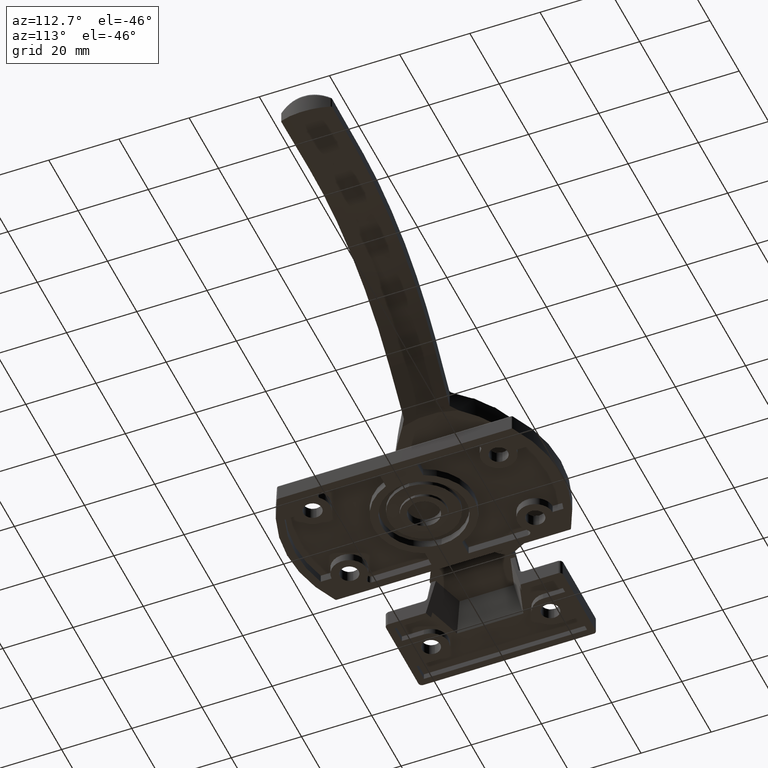
[diagram: clean part render]
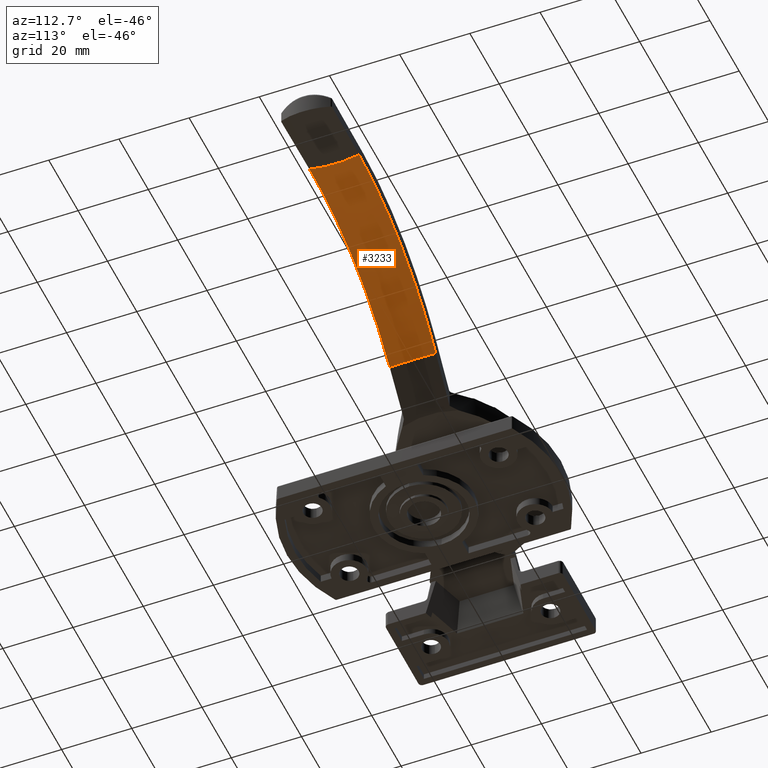
[diagram: same view with one face highlighted and labeled with its STEP entity id]
A machine part, auxiliary view. The second image highlights one B-rep face of the part: STEP entity #3233.
In plain terms, the highlighted face is a freeform B-spline surface patch.
Its self-contained STEP definition (entity closure, byte-faithful):
#42=(
BOUNDED_SURFACE()
B_SPLINE_SURFACE(2,2,((#6671,#6672,#6673),(#6674,#6675,#6676),(#6677,#6678,
#6679)),.UNSPECIFIED.,.F.,.F.,.F.)
B_SPLINE_SURFACE_WITH_KNOTS((3,3),(3,3),(-1.9421936505511,-1.19939900303869),
(0.,0.83854257642897),.UNSPECIFIED.)
GEOMETRIC_REPRESENTATION_ITEM()
RATIONAL_B_SPLINE_SURFACE(((1.,0.913385837699192,1.),(0.93182114174597,
0.851112234139461,0.93182114174597),(1.,0.913385837699192,1.)))
REPRESENTATION_ITEM('')
SURFACE()
);
#75=ELLIPSE('',#3609,22.0009551114969,16.3614404625394);
#76=ELLIPSE('',#3611,22.0009551114969,16.3614404625394);
#135=B_SPLINE_CURVE_WITH_KNOTS('',3,(#6609,#6610,#6611,#6612,#6613,#6614,
#6615,#6616,#6617,#6618),.UNSPECIFIED.,.F.,.F.,(4,2,2,2,4),(-6.03292624550646,
-4.54256569014281,-3.01926650282002,-1.49268337953166,0.),.UNSPECIFIED.);
#140=B_SPLINE_CURVE_WITH_KNOTS('',3,(#6661,#6662,#6663,#6664,#6665,#6666,
#6667,#6668,#6669,#6670),.UNSPECIFIED.,.F.,.F.,(4,2,2,2,4),(-6.04837535838373,
-4.55468247359378,-3.02700950170241,-1.49700260548116,0.),.UNSPECIFIED.);
#706=FACE_OUTER_BOUND('',#953,.T.);
#953=EDGE_LOOP('',(#2904,#2905,#2906,#2907));
#1603=VERTEX_POINT('',#6603);
#1604=VERTEX_POINT('',#6608);
#1606=VERTEX_POINT('',#6645);
#1609=VERTEX_POINT('',#6656);
#2044=EDGE_CURVE('',#1603,#1604,#135,.T.);
#2049=EDGE_CURVE('',#1606,#1603,#75,.T.);
#2053=EDGE_CURVE('',#1609,#1606,#140,.T.);
#2054=EDGE_CURVE('',#1609,#1604,#76,.T.);
#2904=ORIENTED_EDGE('',*,*,#2053,.F.);
#2905=ORIENTED_EDGE('',*,*,#2054,.T.);
#2906=ORIENTED_EDGE('',*,*,#2044,.F.);
#2907=ORIENTED_EDGE('',*,*,#2049,.F.);
#3233=ADVANCED_FACE('',(#706),#42,.F.);
#3609=AXIS2_PLACEMENT_3D('',#6650,#4524,#4525);
#3611=AXIS2_PLACEMENT_3D('',#6680,#4530,#4531);
#4524=DIRECTION('center_axis',(1.,0.,2.22044604925031E-16));
#4525=DIRECTION('ref_axis',(-1.20782722456603E-32,-1.,5.4395702384835E-17));
#4530=DIRECTION('center_axis',(0.668547377018911,0.,0.743669553418139));
#4531=DIRECTION('ref_axis',(-4.04524277003962E-17,-1.,3.63661041504827E-17));
#6603=CARTESIAN_POINT('',(91.,19.5803571428571,35.5774133005202));
#6608=CARTESIAN_POINT('',(37.5843735399109,19.1034319066063,11.6611324087279));
#6609=CARTESIAN_POINT('Ctrl Pts',(91.,19.5803571428571,35.5774133005202));
#6610=CARTESIAN_POINT('Ctrl Pts',(86.0323354422425,19.53600299502,35.5668654211886));
#6611=CARTESIAN_POINT('Ctrl Pts',(81.0790787144868,19.4917774885237,35.0418883095933));
#6612=CARTESIAN_POINT('Ctrl Pts',(71.2526444181456,19.4040414680206,32.9570836087359));
#6613=CARTESIAN_POINT('Ctrl Pts',(66.411176876002,19.36081407925,31.3804799155093));
#6614=CARTESIAN_POINT('Ctrl Pts',(57.1311489673593,19.2779566872086,27.2298772113958));
#6615=CARTESIAN_POINT('Ctrl Pts',(52.7195924253965,19.2385677895113,24.6654143810673));
#6616=CARTESIAN_POINT('Ctrl Pts',(44.6028018421833,19.1660964450184,18.7155326016414));
#6617=CARTESIAN_POINT('Ctrl Pts',(40.9059057533907,19.1330884442267,15.3656231572705));
#6618=CARTESIAN_POINT('Ctrl Pts',(37.5843735399109,19.1034319066063,11.6611324087279));
#6645=CARTESIAN_POINT('',(91.,5.41964285714286,35.7691474387298));
#6650=CARTESIAN_POINT('Origin',(91.,12.8791875868219,51.1614404625394));
#6656=CARTESIAN_POINT('',(37.4525985727811,5.89774465560017,11.779596057302));
#6661=CARTESIAN_POINT('Ctrl Pts',(37.4525985727811,5.89774465560017,11.779596057302));
#6662=CARTESIAN_POINT('Ctrl Pts',(40.7757228756569,5.86807390289592,15.4871714519258));
#6663=CARTESIAN_POINT('Ctrl Pts',(44.4737980896274,5.83505537420085,18.840716683191));
#6664=CARTESIAN_POINT('Ctrl Pts',(52.5927278250575,5.76256493013451,24.7994955496219));
#6665=CARTESIAN_POINT('Ctrl Pts',(57.0053433687604,5.72316657706464,27.3692605684185));
#6666=CARTESIAN_POINT('Ctrl Pts',(66.304920599909,5.64013463750081,31.5397749313862));
#6667=CARTESIAN_POINT('Ctrl Pts',(71.1664517881051,5.59672810903331,33.1273130359381));
#6668=CARTESIAN_POINT('Ctrl Pts',(81.0350697315322,5.50861544882414,35.2276315258292));
#6669=CARTESIAN_POINT('Ctrl Pts',(86.0102044896803,5.46419460277071,35.7572066303779));
#6670=CARTESIAN_POINT('Ctrl Pts',(90.9999999999999,5.41964285714286,35.7691474387298));
#6671=CARTESIAN_POINT('Ctrl Pts',(37.251885103061,20.8637267303473,11.9600343488751));
#6672=CARTESIAN_POINT('Ctrl Pts',(58.7874805131591,20.8637267303473,35.9155043301272));
#6673=CARTESIAN_POINT('Ctrl Pts',(91.,20.8637267303473,35.9155043301272));
#6674=CARTESIAN_POINT('Ctrl Pts',(38.9717154848103,12.8791875868219,10.413933550004));
#6675=CARTESIAN_POINT('Ctrl Pts',(59.8182156336817,12.8791875868219,33.6028772044847));
#6676=CARTESIAN_POINT('Ctrl Pts',(91.,12.8791875868219,33.6028772044847));
#6677=CARTESIAN_POINT('Ctrl Pts',(37.251885103061,4.89464844329638,11.9600343488751));
#6678=CARTESIAN_POINT('Ctrl Pts',(58.7874805131591,4.89464844329638,35.9155043301272));
#6679=CARTESIAN_POINT('Ctrl Pts',(91.,4.89464844329638,35.9155043301272));
#6680=CARTESIAN_POINT('Origin',(25.9139465880286,12.8791875868219,22.1526649603972));